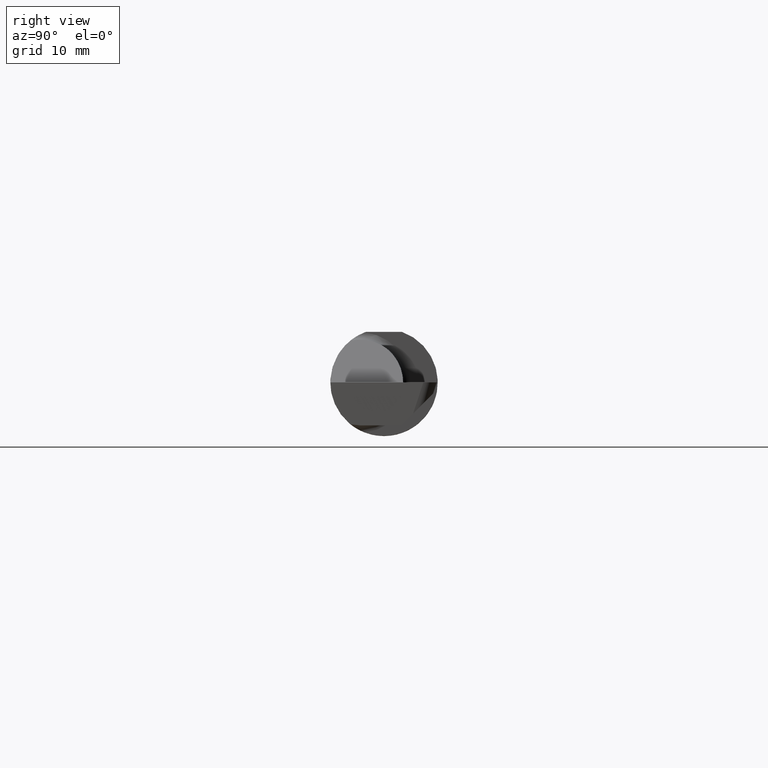
[diagram: clean part render]
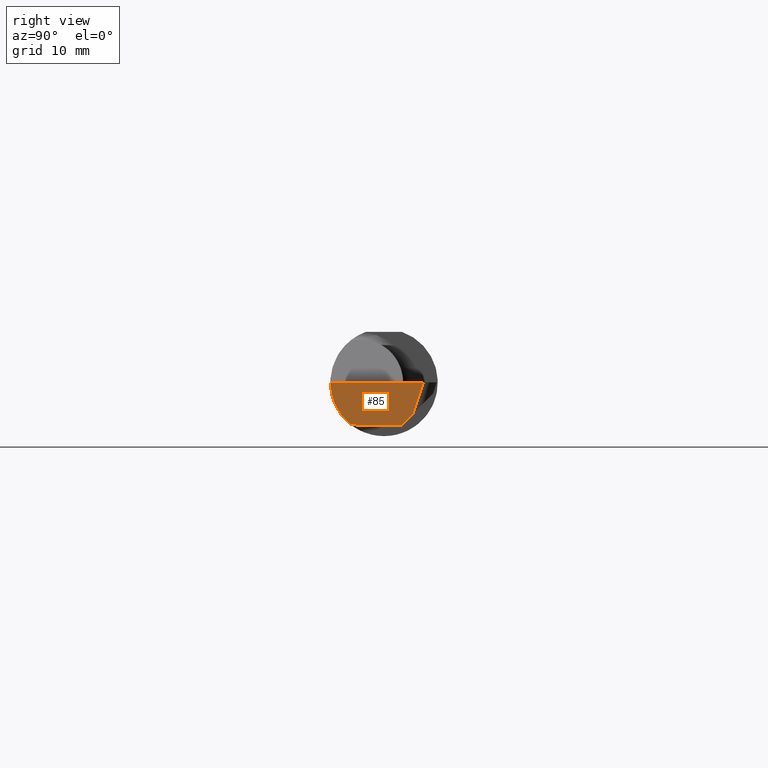
[diagram: same view with one face highlighted and labeled with its STEP entity id]
A machine part, right view. The second image highlights one B-rep face of the part: STEP entity #85.
In plain terms, the highlighted planar face has unit normal (-0.9992, 0.0349, 0.0175).
Its self-contained STEP definition (entity closure, byte-faithful):
#1 = CARTESIAN_POINT ( 'NONE',  ( 2.494604638945828956, 0.06030305154315079852, -0.1500000000000000500 ) ) ;
#3 = CARTESIAN_POINT ( 'NONE',  ( 2.488471823259917226, -0.1172600179964006784, -0.1461167706989303094 ) ) ;
#30 = DIRECTION ( 'NONE',  ( 0.02739170151059986541, 0.3089010440752013031, 0.9506996579664918068 ) ) ;
#36 = DIRECTION ( 'NONE',  ( -0.03489949670249319069, -0.9993908270190959842, 0.000000000000000000 ) ) ;
#50 = EDGE_CURVE ( 'NONE', #665, #614, #417, .T. ) ;
#52 = CARTESIAN_POINT ( 'NONE',  ( 2.489588163846105484, -0.08335000000000010456, -0.1500000000000000500 ) ) ;
#53 = ORIENTED_EDGE ( 'NONE', *, *, #263, .F. ) ;
#59 =( BOUNDED_CURVE ( )  B_SPLINE_CURVE ( 3, ( #597, #543, #701, #145 ),
 .UNSPECIFIED., .F., .T. ) 
 B_SPLINE_CURVE_WITH_KNOTS ( ( 4, 4 ),
 ( 5.852427379562186616, 6.746954780470634461 ),
 .UNSPECIFIED. ) 
 CURVE ( )  GEOMETRIC_REPRESENTATION_ITEM ( )  RATIONAL_B_SPLINE_CURVE ( ( 1.000000000000000000, 0.9344226172588802060, 0.9344226172588802060, 1.000000000000000000 ) ) 
 REPRESENTATION_ITEM ( '' )  );
#85 = ADVANCED_FACE ( 'NONE', ( #376 ), #208, .F. ) ;
#87 = CARTESIAN_POINT ( 'NONE',  ( 2.499922542640338197, 0.1372830298860648612, 0.0005638438891804136138 ) ) ;
#113 = VECTOR ( 'NONE', #448, 39.37007874015748143 ) ;
#123 = VERTEX_POINT ( 'NONE', #52 ) ;
#144 = CARTESIAN_POINT ( 'NONE',  ( 2.488471823259917226, -0.1172600179964006784, -0.1461167706989303094 ) ) ;
#145 = CARTESIAN_POINT ( 'NONE',  ( 2.488576259503493926, -0.1873499999999999888, 0.000000000000000000 ) ) ;
#167 = DIRECTION ( 'NONE',  ( -0.03701744261649742712, -0.7066221440565398915, -0.7066221440565478851 ) ) ;
#177 = LINE ( 'NONE', #443, #113 ) ;
#179 = EDGE_CURVE ( 'NONE', #621, #579, #59, .T. ) ;
#180 = ORIENTED_EDGE ( 'NONE', *, *, #179, .F. ) ;
#203 = CARTESIAN_POINT ( 'NONE',  ( 2.488576259503493926, -0.1873499999999999888, 0.000000000000000000 ) ) ;
#208 = PLANE ( 'NONE',  #518 ) ;
#213 = CARTESIAN_POINT ( 'NONE',  ( 2.489588163846105484, -0.08335000000000010456, -0.1500000000000000500 ) ) ;
#228 = DIRECTION ( 'NONE',  ( -0.03489949670249319069, -0.9993908270190959842, 0.000000000000000000 ) ) ;
#239 = VERTEX_POINT ( 'NONE', #1 ) ;
#263 = EDGE_CURVE ( 'NONE', #665, #239, #292, .T. ) ;
#292 = LINE ( 'NONE', #343, #505 ) ;
#301 = ORIENTED_EDGE ( 'NONE', *, *, #503, .T. ) ;
#343 = CARTESIAN_POINT ( 'NONE',  ( 2.497044125482537957, 0.1068701584290903395, -0.1034328931140599678 ) ) ;
#376 = FACE_OUTER_BOUND ( 'NONE', #687, .T. ) ;
#395 = CARTESIAN_POINT ( 'NONE',  ( 2.499906297085412898, 0.1370998259008695819, 0.000000000000000000 ) ) ;
#417 = LINE ( 'NONE', #87, #445 ) ;
#435 = DIRECTION ( 'NONE',  ( -0.9992386149554828290, 0.03489418134010589118, 0.01745240643728358451 ) ) ;
#443 = CARTESIAN_POINT ( 'NONE',  ( 2.489884857891535574, -0.07485379416751695991, -0.1500000000000000500 ) ) ;
#445 = VECTOR ( 'NONE', #30, 39.37007874015748854 ) ;
#448 = DIRECTION ( 'NONE',  ( -0.03489949670249319069, -0.9993908270190959842, 0.000000000000000000 ) ) ;
#468 = ORIENTED_EDGE ( 'NONE', *, *, #707, .F. ) ;
#500 = LINE ( 'NONE', #551, #663 ) ;
#503 = EDGE_CURVE ( 'NONE', #621, #123, #613, .T. ) ;
#505 = VECTOR ( 'NONE', #167, 39.37007874015748854 ) ;
#518 = AXIS2_PLACEMENT_3D ( 'NONE', #708, #435, #36 ) ;
#543 = CARTESIAN_POINT ( 'NONE',  ( 2.487529306701961485, -0.1623470442677541203, -0.1099340280425338268 ) ) ;
#546 = CARTESIAN_POINT ( 'NONE',  ( 2.488815404197634251, -0.1061291577212409437, -0.1486999626928446339 ) ) ;
#551 = CARTESIAN_POINT ( 'NONE',  ( 2.499973137204639428, 0.1390138764844880415, 0.000000000000000000 ) ) ;
#563 = ORIENTED_EDGE ( 'NONE', *, *, #50, .T. ) ;
#579 = VERTEX_POINT ( 'NONE', #203 ) ;
#597 = CARTESIAN_POINT ( 'NONE',  ( 2.488471823259917226, -0.1172600179964006784, -0.1461167706989303094 ) ) ;
#613 =( BOUNDED_CURVE ( )  B_SPLINE_CURVE ( 3, ( #144, #546, #635, #213 ),
 .UNSPECIFIED., .F., .F. ) 
 B_SPLINE_CURVE_WITH_KNOTS ( ( 4, 4 ),
 ( 0.8789888184544047967, 1.107026853503848551 ),
 .UNSPECIFIED. ) 
 CURVE ( )  GEOMETRIC_REPRESENTATION_ITEM ( )  RATIONAL_B_SPLINE_CURVE ( ( 1.000000000000000000, 0.9956712472009929815, 0.9956712472009929815, 1.000000000000000000 ) ) 
 REPRESENTATION_ITEM ( '' )  );
#614 = VERTEX_POINT ( 'NONE', #395 ) ;
#621 = VERTEX_POINT ( 'NONE', #3 ) ;
#635 = CARTESIAN_POINT ( 'NONE',  ( 2.489189135516857831, -0.09477667630339424443, -0.1499999999999999944 ) ) ;
#663 = VECTOR ( 'NONE', #228, 39.37007874015748854 ) ;
#665 = VERTEX_POINT ( 'NONE', #669 ) ;
#669 = CARTESIAN_POINT ( 'NONE',  ( 2.496782013450319582, 0.1018667288808076804, -0.1084363226623426962 ) ) ;
#677 = EDGE_CURVE ( 'NONE', #614, #579, #500, .T. ) ;
#687 = EDGE_LOOP ( 'NONE', ( #53, #563, #699, #180, #301, #468 ) ) ;
#699 = ORIENTED_EDGE ( 'NONE', *, *, #677, .T. ) ;
#701 = CARTESIAN_POINT ( 'NONE',  ( 2.487566561880238947, -0.1873500000000000165, -0.05781030015605114619 ) ) ;
#707 = EDGE_CURVE ( 'NONE', #239, #123, #177, .T. ) ;
#708 = CARTESIAN_POINT ( 'NONE',  ( 2.499973137204639428, 0.1390138764844880415, 0.000000000000000000 ) ) ;